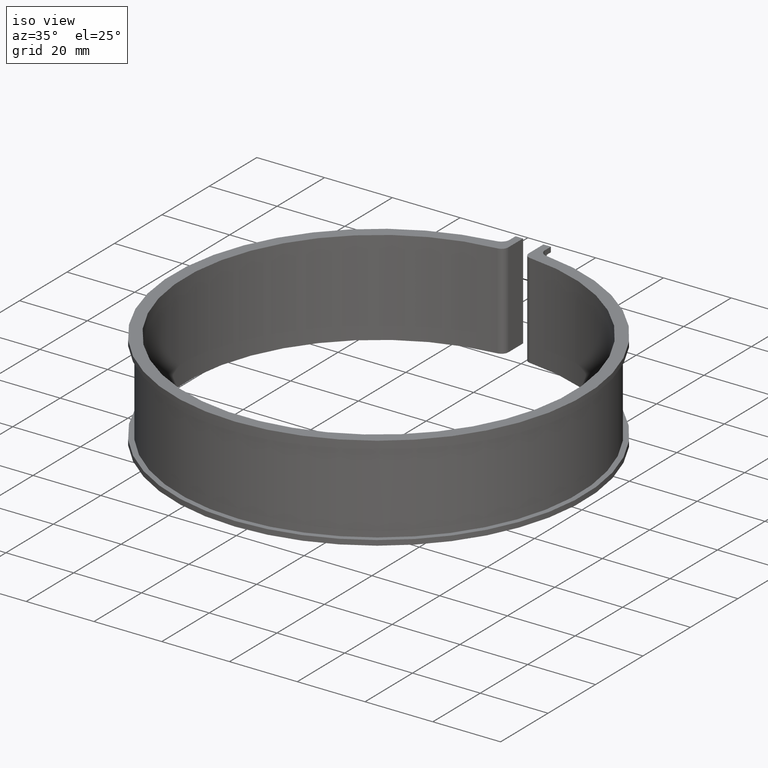
[diagram: clean part render]
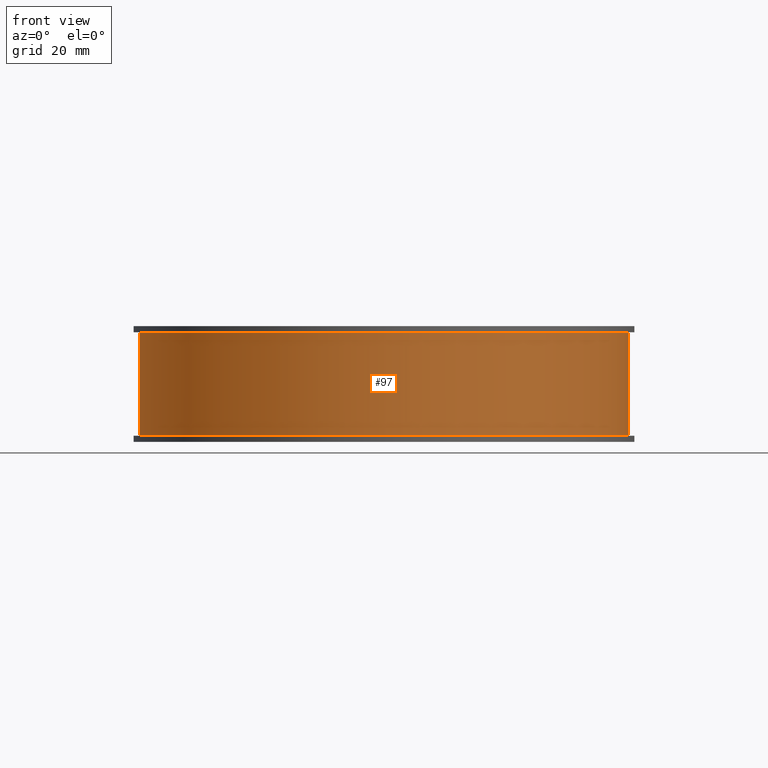
[diagram: tour spotlight — one face highlighted and labeled with its STEP entity id]
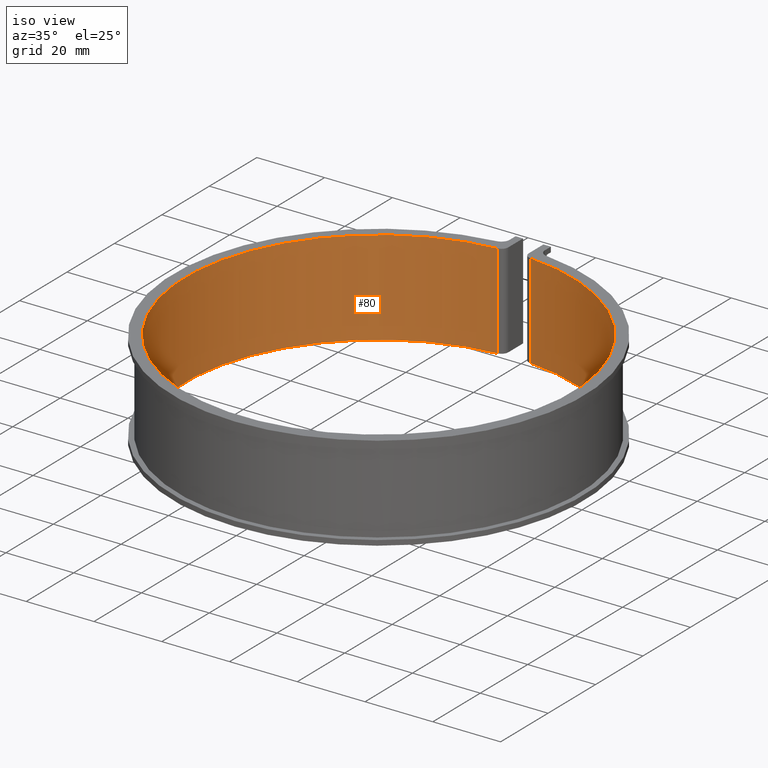
[diagram: tour spotlight — one face highlighted and labeled with its STEP entity id]
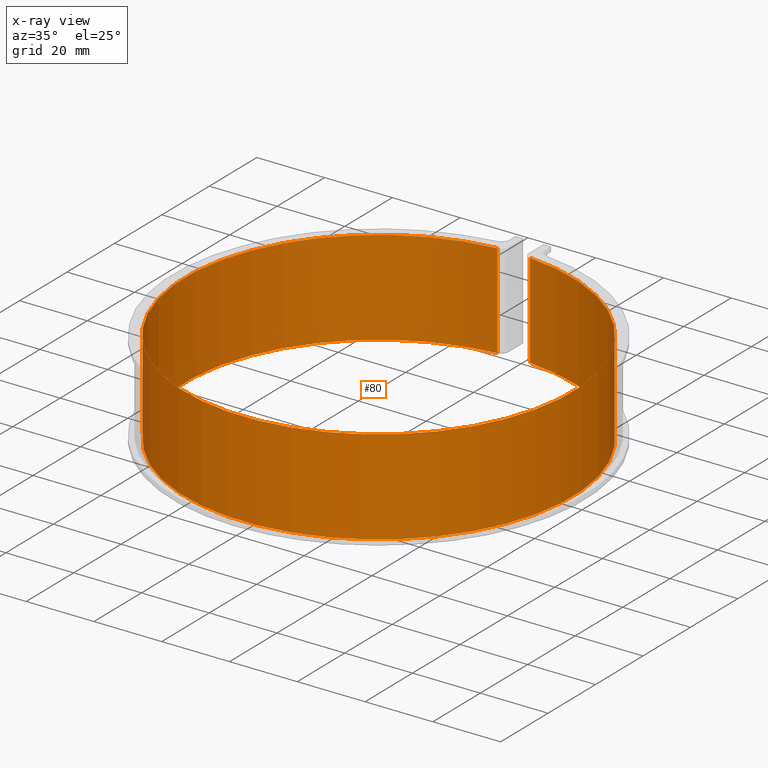
[diagram: x-ray of the same camera — body ghosted, this tour face saturated]
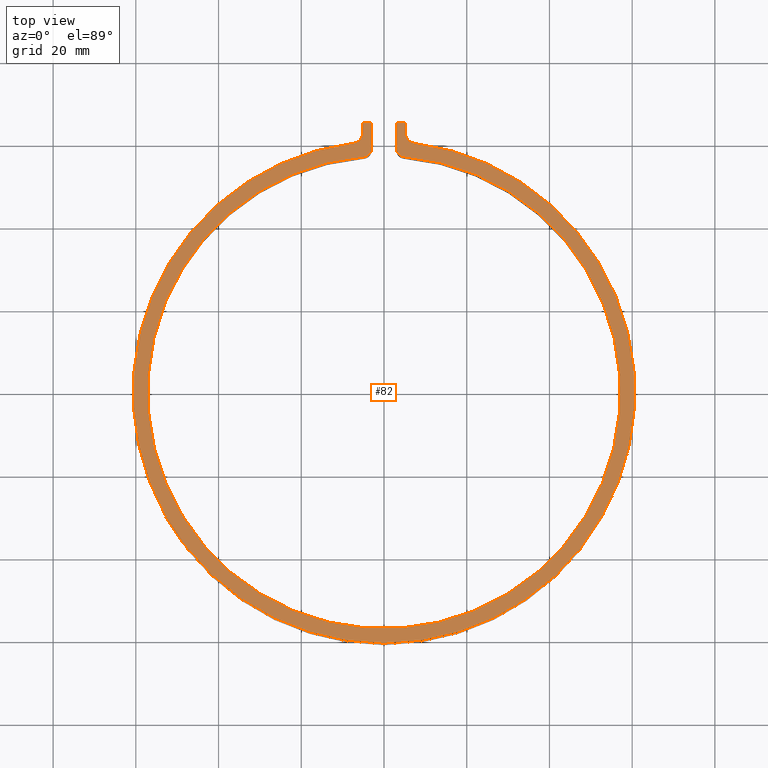
[diagram: tour spotlight — one face highlighted and labeled with its STEP entity id]
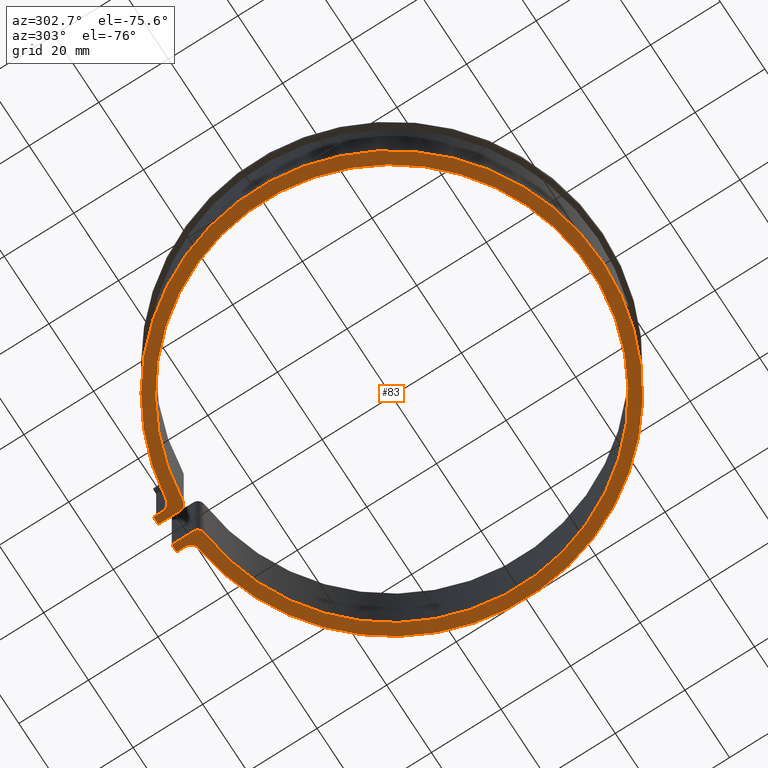
[diagram: tour spotlight — one face highlighted and labeled with its STEP entity id]
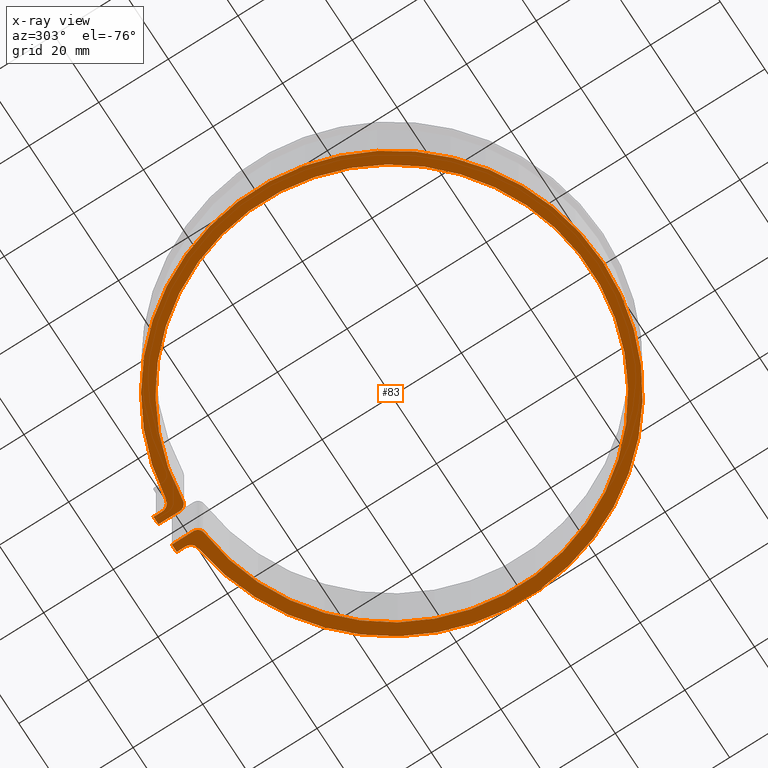
[diagram: x-ray of the same camera — body ghosted, this tour face saturated]
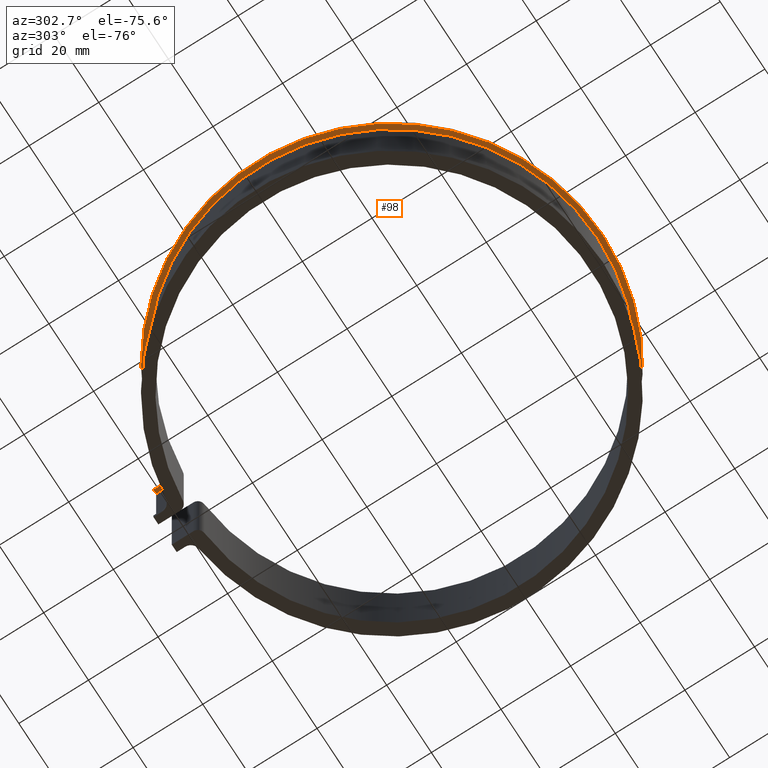
[diagram: tour spotlight — one face highlighted and labeled with its STEP entity id]
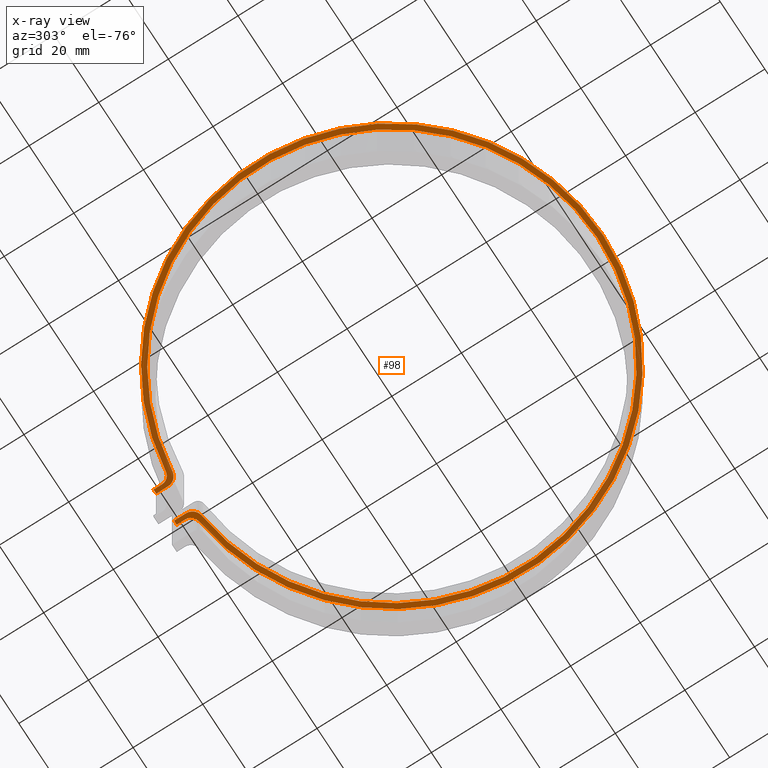
[diagram: x-ray of the same camera — body ghosted, this tour face saturated]
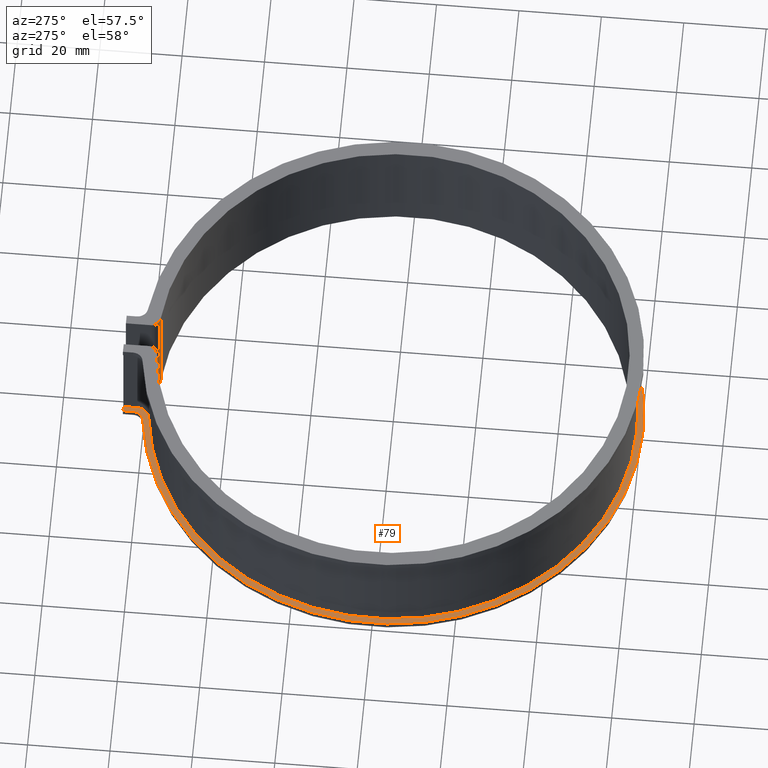
[diagram: tour spotlight — one face highlighted and labeled with its STEP entity id]
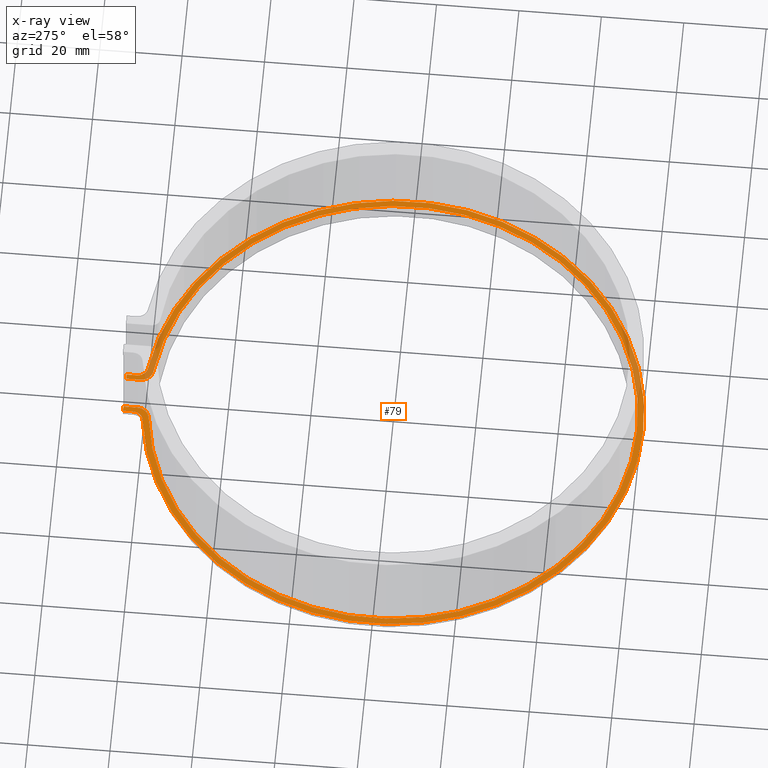
[diagram: x-ray of the same camera — body ghosted, this tour face saturated]
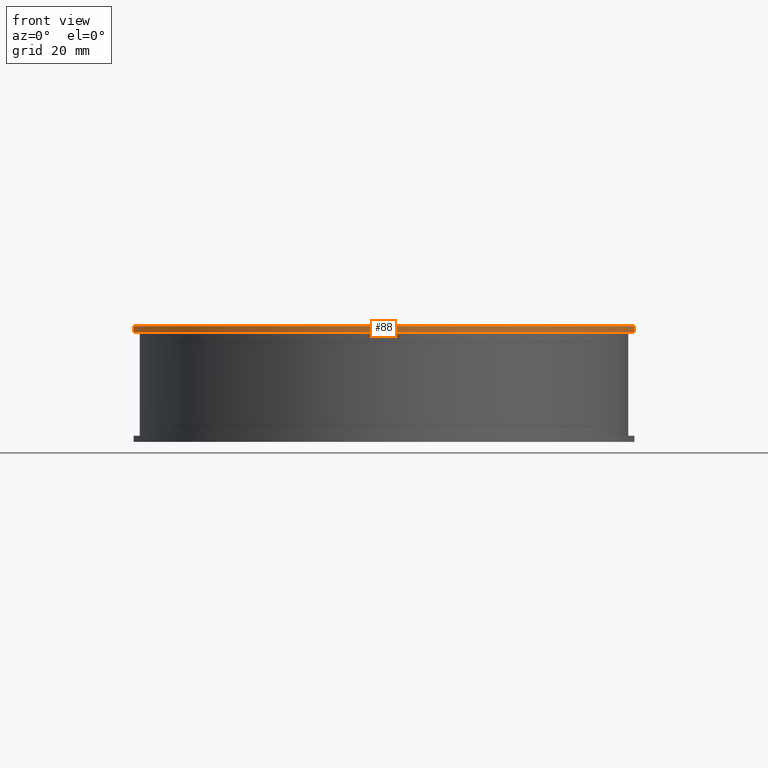
[diagram: tour spotlight — one face highlighted and labeled with its STEP entity id]
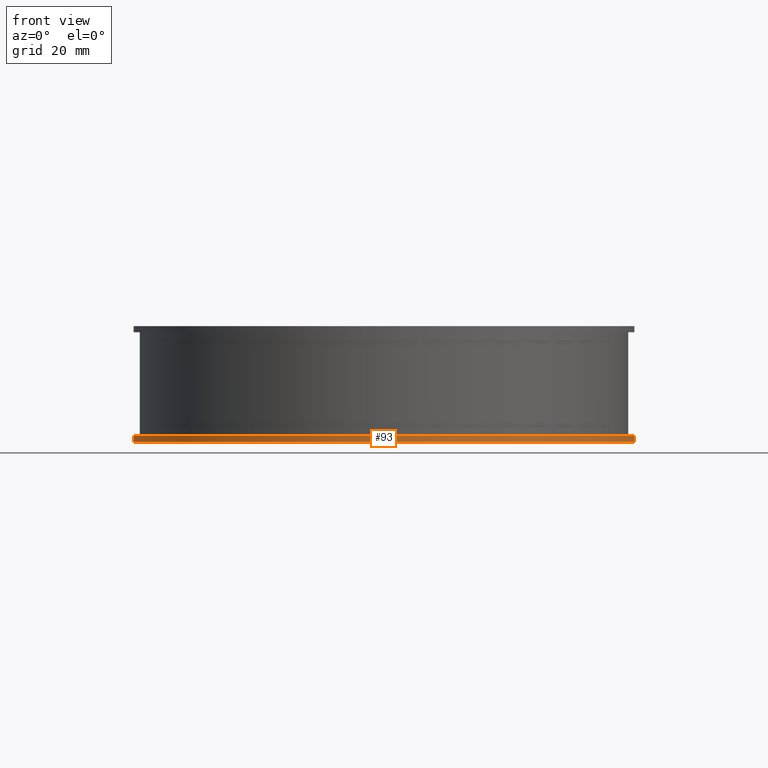
[diagram: tour spotlight — one face highlighted and labeled with its STEP entity id]
A machine part: a face-by-face anatomy tour. The part has 26 B-rep faces; the first image is the clean iso view, then the 8 largest visible faces are spotlighted one at a time (largest first), each with its STEP entity span.

Face 1 — front view, entity #97. In plain terms, the highlighted cylindrical surface (partial cylindrical patch) has radius 59.15 mm, axis along (0, 0, -1).
Definition (entity closure, byte-faithful):
#97 = ADVANCED_FACE( '', ( #146 ), #147, .T. );
#146 = FACE_OUTER_BOUND( '', #198, .T. );
#147 = CYLINDRICAL_SURFACE( '', #199, 59.1500000000000 );
#198 = EDGE_LOOP( '', ( #392, #393, #394, #395 ) );
#199 = AXIS2_PLACEMENT_3D( '', #396, #397, #398 );
#392 = ORIENTED_EDGE( '', *, *, #493, .F. );
#393 = ORIENTED_EDGE( '', *, *, #455, .T. );
#394 = ORIENTED_EDGE( '', *, *, #495, .T. );
#395 = ORIENTED_EDGE( '', *, *, #496, .F. );
#396 = CARTESIAN_POINT( '', ( 0.000000000000000, 3.46944695195361E-014, -14.0000000000000 ) );
#397 = DIRECTION( '', ( 0.000000000000000, 0.000000000000000, -1.00000000000000 ) );
#398 = DIRECTION( '', ( -0.0845308537616220, -0.996420862267712, 0.000000000000000 ) );
#455 = EDGE_CURVE( '', #537, #550, #552, .T. );
#493 = EDGE_CURVE( '', #537, #610, #611, .T. );
#495 = EDGE_CURVE( '', #550, #613, #614, .T. );
#496 = EDGE_CURVE( '', #610, #613, #615, .T. );
#537 = VERTEX_POINT( '', #674 );
#550 = VERTEX_POINT( '', #690 );
#552 = CIRCLE( '', #692, 59.1500000000000 );
#610 = VERTEX_POINT( '', #774 );
#611 = LINE( '', #775, #776 );
#613 = VERTEX_POINT( '', #778 );
#614 = LINE( '', #779, #780 );
#615 = CIRCLE( '', #781, 59.1500000000000 );
#674 = CARTESIAN_POINT( '', ( -6.66210780370072, 58.7736235024852, -12.5000000000000 ) );
#690 = CARTESIAN_POINT( '', ( 6.66210780370075, 58.7736235024851, -12.5000000000000 ) );
#692 = AXIS2_PLACEMENT_3D( '', #829, #830, #831 );
#774 = CARTESIAN_POINT( '', ( -6.66210780370077, 58.7736235024851, 12.5000000000000 ) );
#775 = CARTESIAN_POINT( '', ( -6.66210780370072, 58.7736235024852, -14.0000000000000 ) );
#776 = VECTOR( '', #895, 1000.00000000000 );
#778 = CARTESIAN_POINT( '', ( 6.66210780370074, 58.7736235024851, 12.5000000000000 ) );
#779 = CARTESIAN_POINT( '', ( 6.66210780370075, 58.7736235024851, -14.0000000000000 ) );
#780 = VECTOR( '', #899, 1000.00000000000 );
#781 = AXIS2_PLACEMENT_3D( '', #900, #901, #902 );
#829 = CARTESIAN_POINT( '', ( -1.73472347597681E-015, -6.93889390390723E-015, -12.5000000000000 ) );
#830 = DIRECTION( '', ( 0.000000000000000, 0.000000000000000, 1.00000000000000 ) );
#831 = DIRECTION( '', ( 1.00000000000000, 2.77555756156289E-017, 0.000000000000000 ) );
#895 = DIRECTION( '', ( 0.000000000000000, 0.000000000000000, 1.00000000000000 ) );
#899 = DIRECTION( '', ( 0.000000000000000, 0.000000000000000, 1.00000000000000 ) );
#900 = CARTESIAN_POINT( '', ( -1.73472347597681E-015, -6.93889390390723E-015, 12.5000000000000 ) );
#901 = DIRECTION( '', ( 0.000000000000000, 0.000000000000000, 1.00000000000000 ) );
#902 = DIRECTION( '', ( 1.00000000000000, 2.77555756156289E-017, 0.000000000000000 ) );

Face 2 — iso view, entity #80. An x-ray twin of the same camera follows (body ghosted, this face saturated) — the face is partly hidden behind the body. In plain terms, the highlighted cylindrical surface (partial cylindrical patch) has radius 57.15 mm, axis along (0, 0, -1).
Definition (entity closure, byte-faithful):
#80 = ADVANCED_FACE( '', ( #112 ), #113, .F. );
#112 = FACE_OUTER_BOUND( '', #164, .T. );
#113 = CYLINDRICAL_SURFACE( '', #165, 57.1500000000000 );
#164 = EDGE_LOOP( '', ( #253, #254, #255, #256 ) );
#165 = AXIS2_PLACEMENT_3D( '', #257, #258, #259 );
#253 = ORIENTED_EDGE( '', *, *, #456, .F. );
#254 = ORIENTED_EDGE( '', *, *, #435, .F. );
#255 = ORIENTED_EDGE( '', *, *, #457, .T. );
#256 = ORIENTED_EDGE( '', *, *, #458, .T. );
#257 = CARTESIAN_POINT( '', ( 3.46944695195361E-015, 3.46944695195361E-014, -14.0000000000000 ) );
#258 = DIRECTION( '', ( 0.000000000000000, 0.000000000000000, -1.00000000000000 ) );
#259 = DIRECTION( '', ( -0.0845308537616220, -0.996420862267712, 0.000000000000000 ) );
#435 = EDGE_CURVE( '', #513, #509, #515, .T. );
#456 = EDGE_CURVE( '', #509, #553, #554, .T. );
#457 = EDGE_CURVE( '', #513, #555, #556, .T. );
#458 = EDGE_CURVE( '', #555, #553, #557, .T. );
#509 = VERTEX_POINT( '', #633 );
#513 = VERTEX_POINT( '', #638 );
#515 = LINE( '', #640, #641 );
#553 = VERTEX_POINT( '', #693 );
#554 = CIRCLE( '', #694, 57.1500000000000 );
#555 = VERTEX_POINT( '', #695 );
#556 = CIRCLE( '', #696, 57.1500000000000 );
#557 = LINE( '', #697, #698 );
#633 = CARTESIAN_POINT( '', ( 4.83093829247670, 56.9454522785998, 14.0000000000000 ) );
#638 = CARTESIAN_POINT( '', ( 4.83093829247670, 56.9454522785998, -14.0000000000000 ) );
#640 = CARTESIAN_POINT( '', ( 4.83093829247670, 56.9454522785998, -14.0000000000000 ) );
#641 = VECTOR( '', #799, 1000.00000000000 );
#693 = CARTESIAN_POINT( '', ( -4.83093829247667, 56.9454522785998, 14.0000000000000 ) );
#694 = AXIS2_PLACEMENT_3D( '', #832, #833, #834 );
#695 = CARTESIAN_POINT( '', ( -4.83093829247667, 56.9454522785998, -14.0000000000000 ) );
#696 = AXIS2_PLACEMENT_3D( '', #835, #836, #837 );
#697 = CARTESIAN_POINT( '', ( -4.83093829247667, 56.9454522785998, -14.0000000000000 ) );
#698 = VECTOR( '', #838, 1000.00000000000 );
#799 = DIRECTION( '', ( 0.000000000000000, 0.000000000000000, 1.00000000000000 ) );
#832 = CARTESIAN_POINT( '', ( 3.46944695195361E-015, 3.46944695195361E-014, 14.0000000000000 ) );
#833 = DIRECTION( '', ( 0.000000000000000, 0.000000000000000, -1.00000000000000 ) );
#834 = DIRECTION( '', ( 1.00000000000000, -5.55111512312578E-017, 0.000000000000000 ) );
#835 = CARTESIAN_POINT( '', ( 3.46944695195361E-015, 3.46944695195361E-014, -14.0000000000000 ) );
#836 = DIRECTION( '', ( 0.000000000000000, 0.000000000000000, -1.00000000000000 ) );
#837 = DIRECTION( '', ( 1.00000000000000, -5.55111512312578E-017, 0.000000000000000 ) );
#838 = DIRECTION( '', ( 0.000000000000000, 0.000000000000000, 1.00000000000000 ) );

Face 3 — top view, entity #82. In plain terms, the highlighted planar face has unit normal (0, 0, 1).
Definition (entity closure, byte-faithful):
#82 = ADVANCED_FACE( '', ( #116 ), #117, .T. );
#116 = FACE_OUTER_BOUND( '', #168, .T. );
#117 = PLANE( '', #169 );
#168 = EDGE_LOOP( '', ( #267, #268, #269, #270, #271, #272, #273, #274, #275, #276, #277, #278 ) );
#169 = AXIS2_PLACEMENT_3D( '', #279, #280, #281 );
#267 = ORIENTED_EDGE( '', *, *, #462, .F. );
#268 = ORIENTED_EDGE( '', *, *, #436, .T. );
#269 = ORIENTED_EDGE( '', *, *, #463, .T. );
#270 = ORIENTED_EDGE( '', *, *, #432, .T. );
#271 = ORIENTED_EDGE( '', *, *, #456, .T. );
#272 = ORIENTED_EDGE( '', *, *, #459, .T. );
#273 = ORIENTED_EDGE( '', *, *, #464, .T. );
#274 = ORIENTED_EDGE( '', *, *, #465, .T. );
#275 = ORIENTED_EDGE( '', *, *, #466, .F. );
#276 = ORIENTED_EDGE( '', *, *, #467, .F. );
#277 = ORIENTED_EDGE( '', *, *, #468, .F. );
#278 = ORIENTED_EDGE( '', *, *, #469, .F. );
#279 = CARTESIAN_POINT( '', ( 5.00000000000000, 58.9382940031352, 14.0000000000000 ) );
#280 = DIRECTION( '', ( 0.000000000000000, 0.000000000000000, 1.00000000000000 ) );
#281 = DIRECTION( '', ( -0.0845308537616220, -0.996420862267712, 0.000000000000000 ) );
#432 = EDGE_CURVE( '', #508, #509, #510, .T. );
#436 = EDGE_CURVE( '', #516, #517, #518, .T. );
#456 = EDGE_CURVE( '', #509, #553, #554, .T. );
#459 = EDGE_CURVE( '', #553, #558, #559, .T. );
#462 = EDGE_CURVE( '', #516, #563, #564, .T. );
#463 = EDGE_CURVE( '', #517, #508, #565, .T. );
#464 = EDGE_CURVE( '', #558, #566, #567, .T. );
#465 = EDGE_CURVE( '', #566, #568, #569, .T. );
#466 = EDGE_CURVE( '', #570, #568, #571, .T. );
#467 = EDGE_CURVE( '', #572, #570, #573, .T. );
#468 = EDGE_CURVE( '', #574, #572, #575, .T. );
#469 = EDGE_CURVE( '', #563, #574, #576, .T. );
#508 = VERTEX_POINT( '', #632 );
#509 = VERTEX_POINT( '', #633 );
#510 = CIRCLE( '', #634, 2.00000000000000 );
#516 = VERTEX_POINT( '', #642 );
#517 = VERTEX_POINT( '', #643 );
#518 = LINE( '', #644, #645 );
#553 = VERTEX_POINT( '', #693 );
#554 = CIRCLE( '', #694, 57.1500000000000 );
#558 = VERTEX_POINT( '', #699 );
#559 = CIRCLE( '', #700, 2.00000000000000 );
#563 = VERTEX_POINT( '', #705 );
#564 = LINE( '', #706, #707 );
#565 = LINE( '', #708, #709 );
#566 = VERTEX_POINT( '', #710 );
#567 = LINE( '', #711, #712 );
#568 = VERTEX_POINT( '', #713 );
#569 = LINE( '', #714, #715 );
#570 = VERTEX_POINT( '', #716 );
#571 = LINE( '', #717, #718 );
#572 = VERTEX_POINT( '', #719 );
#573 = CIRCLE( '', #720, 2.50000000000000 );
#574 = VERTEX_POINT( '', #721 );
#575 = CIRCLE( '', #722, 60.6500000000000 );
#576 = CIRCLE( '', #723, 2.50000000000000 );
#632 = CARTESIAN_POINT( '', ( 3.00000000000000, 58.9382940031352, 14.0000000000000 ) );
#633 = CARTESIAN_POINT( '', ( 4.83093829247670, 56.9454522785998, 14.0000000000000 ) );
#634 = AXIS2_PLACEMENT_3D( '', #792, #793, #794 );
#642 = CARTESIAN_POINT( '', ( 5.19999999999996, 65.1500000000000, 14.0000000000000 ) );
#643 = CARTESIAN_POINT( '', ( 3.00000000000001, 65.1500000000000, 14.0000000000000 ) );
#644 = CARTESIAN_POINT( '', ( 4.00000000000000, 65.1500000000000, 14.0000000000000 ) );
#645 = VECTOR( '', #800, 1000.00000000000 );
#693 = CARTESIAN_POINT( '', ( -4.83093829247667, 56.9454522785998, 14.0000000000000 ) );
#694 = AXIS2_PLACEMENT_3D( '', #832, #833, #834 );
#699 = CARTESIAN_POINT( '', ( -2.99999999999995, 58.9382940031352, 14.0000000000000 ) );
#700 = AXIS2_PLACEMENT_3D( '', #839, #840, #841 );
#705 = CARTESIAN_POINT( '', ( 5.19999999999995, 62.6788042323719, 14.0000000000000 ) );
#706 = CARTESIAN_POINT( '', ( 5.19999999999995, 65.1500000000000, 14.0000000000000 ) );
#707 = VECTOR( '', #846, 1000.00000000000 );
#708 = CARTESIAN_POINT( '', ( 3.00000000000000, 65.1500000000000, 14.0000000000000 ) );
#709 = VECTOR( '', #847, 1000.00000000000 );
#710 = CARTESIAN_POINT( '', ( -2.99999999999995, 65.1500000000000, 14.0000000000000 ) );
#711 = CARTESIAN_POINT( '', ( -2.99999999999995, 58.9382940031352, 14.0000000000000 ) );
#712 = VECTOR( '', #848, 1000.00000000000 );
#713 = CARTESIAN_POINT( '', ( -5.19999999999999, 65.1500000000000, 14.0000000000000 ) );
#714 = CARTESIAN_POINT( '', ( -2.99999999999996, 65.1500000000000, 14.0000000000000 ) );
#715 = VECTOR( '', #849, 1000.00000000000 );
#716 = CARTESIAN_POINT( '', ( -5.20000000000000, 62.6788042323718, 14.0000000000000 ) );
#717 = CARTESIAN_POINT( '', ( -5.19999999999999, 62.6788042323719, 14.0000000000000 ) );
#718 = VECTOR( '', #850, 1000.00000000000 );
#719 = CARTESIAN_POINT( '', ( -7.39517022961199, 60.1974580632360, 14.0000000000000 ) );
#720 = AXIS2_PLACEMENT_3D( '', #851, #852, #853 );
#721 = CARTESIAN_POINT( '', ( 7.39517022961200, 60.1974580632360, 14.0000000000000 ) );
#722 = AXIS2_PLACEMENT_3D( '', #854, #855, #856 );
#723 = AXIS2_PLACEMENT_3D( '', #857, #858, #859 );
#792 = CARTESIAN_POINT( '', ( 5.00000000000000, 58.9382940031352, 14.0000000000000 ) );
#793 = DIRECTION( '', ( 0.000000000000000, 0.000000000000000, 1.00000000000000 ) );
#794 = DIRECTION( '', ( -1.00000000000000, -1.17961196366423E-015, 0.000000000000000 ) );
#800 = DIRECTION( '', ( -1.00000000000000, 4.16333634234434E-017, 0.000000000000000 ) );
#832 = CARTESIAN_POINT( '', ( 3.46944695195361E-015, 3.46944695195361E-014, 14.0000000000000 ) );
#833 = DIRECTION( '', ( 0.000000000000000, 0.000000000000000, -1.00000000000000 ) );
#834 = DIRECTION( '', ( 1.00000000000000, -5.55111512312578E-017, 0.000000000000000 ) );
#839 = CARTESIAN_POINT( '', ( -4.99999999999995, 58.9382940031352, 14.0000000000000 ) );
#840 = DIRECTION( '', ( 0.000000000000000, 0.000000000000000, 1.00000000000000 ) );
#841 = DIRECTION( '', ( 1.00000000000000, -2.38697950294409E-015, 0.000000000000000 ) );
#846 = DIRECTION( '', ( -6.93889390390723E-017, -1.00000000000000, 0.000000000000000 ) );
#847 = DIRECTION( '', ( 1.38777878078145E-017, -1.00000000000000, 0.000000000000000 ) );
#848 = DIRECTION( '', ( -1.38777878078145E-017, 1.00000000000000, 0.000000000000000 ) );
#849 = DIRECTION( '', ( -1.00000000000000, 4.16333634234434E-017, 0.000000000000000 ) );
#850 = DIRECTION( '', ( 6.93889390390723E-017, 1.00000000000000, 0.000000000000000 ) );
#851 = CARTESIAN_POINT( '', ( -7.69999999999999, 62.6788042323718, 14.0000000000000 ) );
#852 = DIRECTION( '', ( 0.000000000000000, 0.000000000000000, 1.00000000000000 ) );
#853 = DIRECTION( '', ( 1.00000000000000, 3.76088049591772E-015, 0.000000000000000 ) );
#854 = CARTESIAN_POINT( '', ( -1.73472347597681E-015, -6.93889390390723E-015, 14.0000000000000 ) );
#855 = DIRECTION( '', ( 0.000000000000000, 0.000000000000000, -1.00000000000000 ) );
#856 = DIRECTION( '', ( 1.00000000000000, -5.55111512312578E-017, 0.000000000000000 ) );
#857 = CARTESIAN_POINT( '', ( 7.69999999999995, 62.6788042323719, 14.0000000000000 ) );
#858 = DIRECTION( '', ( 0.000000000000000, 0.000000000000000, 1.00000000000000 ) );
#859 = DIRECTION( '', ( -1.00000000000000, 1.66533453693773E-015, 0.000000000000000 ) );

Face 4 — auxiliary view, entity #83. An x-ray twin of the same camera follows (body ghosted, this face saturated) — the face is partly hidden behind the body. In plain terms, the highlighted planar face has unit normal (0, 0, 1).
Definition (entity closure, byte-faithful):
#83 = ADVANCED_FACE( '', ( #118 ), #119, .F. );
#118 = FACE_OUTER_BOUND( '', #170, .T. );
#119 = PLANE( '', #171 );
#170 = EDGE_LOOP( '', ( #282, #283, #284, #285, #286, #287, #288, #289, #290, #291, #292, #293 ) );
#171 = AXIS2_PLACEMENT_3D( '', #294, #295, #296 );
#282 = ORIENTED_EDGE( '', *, *, #442, .F. );
#283 = ORIENTED_EDGE( '', *, *, #446, .T. );
#284 = ORIENTED_EDGE( '', *, *, #470, .T. );
#285 = ORIENTED_EDGE( '', *, *, #471, .T. );
#286 = ORIENTED_EDGE( '', *, *, #472, .T. );
#287 = ORIENTED_EDGE( '', *, *, #473, .T. );
#288 = ORIENTED_EDGE( '', *, *, #474, .F. );
#289 = ORIENTED_EDGE( '', *, *, #475, .F. );
#290 = ORIENTED_EDGE( '', *, *, #460, .F. );
#291 = ORIENTED_EDGE( '', *, *, #457, .F. );
#292 = ORIENTED_EDGE( '', *, *, #434, .F. );
#293 = ORIENTED_EDGE( '', *, *, #476, .F. );
#294 = CARTESIAN_POINT( '', ( 5.00000000000000, 58.9382940031352, -14.0000000000000 ) );
#295 = DIRECTION( '', ( 0.000000000000000, 0.000000000000000, 1.00000000000000 ) );
#296 = DIRECTION( '', ( -0.0845308537616220, -0.996420862267712, 0.000000000000000 ) );
#434 = EDGE_CURVE( '', #511, #513, #514, .T. );
#442 = EDGE_CURVE( '', #527, #529, #530, .T. );
#446 = EDGE_CURVE( '', #527, #534, #536, .T. );
#457 = EDGE_CURVE( '', #513, #555, #556, .T. );
#460 = EDGE_CURVE( '', #555, #560, #561, .T. );
#470 = EDGE_CURVE( '', #534, #577, #578, .T. );
#471 = EDGE_CURVE( '', #577, #579, #580, .T. );
#472 = EDGE_CURVE( '', #579, #581, #582, .T. );
#473 = EDGE_CURVE( '', #581, #583, #584, .T. );
#474 = EDGE_CURVE( '', #585, #583, #586, .T. );
#475 = EDGE_CURVE( '', #560, #585, #587, .T. );
#476 = EDGE_CURVE( '', #529, #511, #588, .T. );
#511 = VERTEX_POINT( '', #635 );
#513 = VERTEX_POINT( '', #638 );
#514 = CIRCLE( '', #639, 2.00000000000000 );
#527 = VERTEX_POINT( '', #658 );
#529 = VERTEX_POINT( '', #661 );
#530 = LINE( '', #662, #663 );
#534 = VERTEX_POINT( '', #669 );
#536 = LINE( '', #672, #673 );
#555 = VERTEX_POINT( '', #695 );
#556 = CIRCLE( '', #696, 57.1500000000000 );
#560 = VERTEX_POINT( '', #701 );
#561 = CIRCLE( '', #702, 2.00000000000000 );
#577 = VERTEX_POINT( '', #724 );
#578 = CIRCLE( '', #725, 2.50000000000000 );
#579 = VERTEX_POINT( '', #726 );
#580 = CIRCLE( '', #727, 60.6500000000000 );
#581 = VERTEX_POINT( '', #728 );
#582 = CIRCLE( '', #729, 2.50000000000000 );
#583 = VERTEX_POINT( '', #730 );
#584 = LINE( '', #731, #732 );
#585 = VERTEX_POINT( '', #733 );
#586 = LINE( '', #734, #735 );
#587 = LINE( '', #736, #737 );
#588 = LINE( '', #738, #739 );
#635 = CARTESIAN_POINT( '', ( 3.00000000000000, 58.9382940031352, -14.0000000000000 ) );
#638 = CARTESIAN_POINT( '', ( 4.83093829247670, 56.9454522785998, -14.0000000000000 ) );
#639 = AXIS2_PLACEMENT_3D( '', #796, #797, #798 );
#658 = CARTESIAN_POINT( '', ( 5.19999999999996, 65.1500000000000, -14.0000000000000 ) );
#661 = CARTESIAN_POINT( '', ( 3.00000000000001, 65.1500000000000, -14.0000000000000 ) );
#662 = CARTESIAN_POINT( '', ( 4.00000000000000, 65.1500000000000, -14.0000000000000 ) );
#663 = VECTOR( '', #806, 1000.00000000000 );
#669 = CARTESIAN_POINT( '', ( 5.19999999999995, 62.6788042323719, -14.0000000000000 ) );
#672 = CARTESIAN_POINT( '', ( 5.19999999999995, 65.1500000000000, -14.0000000000000 ) );
#673 = VECTOR( '', #810, 1000.00000000000 );
#695 = CARTESIAN_POINT( '', ( -4.83093829247667, 56.9454522785998, -14.0000000000000 ) );
#696 = AXIS2_PLACEMENT_3D( '', #835, #836, #837 );
#701 = CARTESIAN_POINT( '', ( -2.99999999999995, 58.9382940031352, -14.0000000000000 ) );
#702 = AXIS2_PLACEMENT_3D( '', #842, #843, #844 );
#724 = CARTESIAN_POINT( '', ( 7.39517022961200, 60.1974580632360, -14.0000000000000 ) );
#725 = AXIS2_PLACEMENT_3D( '', #860, #861, #862 );
#726 = CARTESIAN_POINT( '', ( -7.39517022961199, 60.1974580632360, -14.0000000000000 ) );
#727 = AXIS2_PLACEMENT_3D( '', #863, #864, #865 );
#728 = CARTESIAN_POINT( '', ( -5.20000000000000, 62.6788042323718, -14.0000000000000 ) );
#729 = AXIS2_PLACEMENT_3D( '', #866, #867, #868 );
#730 = CARTESIAN_POINT( '', ( -5.19999999999999, 65.1500000000000, -14.0000000000000 ) );
#731 = CARTESIAN_POINT( '', ( -5.19999999999999, 62.6788042323719, -14.0000000000000 ) );
#732 = VECTOR( '', #869, 1000.00000000000 );
#733 = CARTESIAN_POINT( '', ( -2.99999999999995, 65.1500000000000, -14.0000000000000 ) );
#734 = CARTESIAN_POINT( '', ( -2.99999999999996, 65.1500000000000, -14.0000000000000 ) );
#735 = VECTOR( '', #870, 1000.00000000000 );
#736 = CARTESIAN_POINT( '', ( -2.99999999999995, 58.9382940031352, -14.0000000000000 ) );
#737 = VECTOR( '', #871, 1000.00000000000 );
#738 = CARTESIAN_POINT( '', ( 3.00000000000000, 65.1500000000000, -14.0000000000000 ) );
#739 = VECTOR( '', #872, 1000.00000000000 );
#796 = CARTESIAN_POINT( '', ( 5.00000000000000, 58.9382940031352, -14.0000000000000 ) );
#797 = DIRECTION( '', ( 0.000000000000000, 0.000000000000000, 1.00000000000000 ) );
#798 = DIRECTION( '', ( -1.00000000000000, -1.17961196366423E-015, 0.000000000000000 ) );
#806 = DIRECTION( '', ( -1.00000000000000, 4.16333634234434E-017, 0.000000000000000 ) );
#810 = DIRECTION( '', ( -6.93889390390723E-017, -1.00000000000000, 0.000000000000000 ) );
#835 = CARTESIAN_POINT( '', ( 3.46944695195361E-015, 3.46944695195361E-014, -14.0000000000000 ) );
#836 = DIRECTION( '', ( 0.000000000000000, 0.000000000000000, -1.00000000000000 ) );
#837 = DIRECTION( '', ( 1.00000000000000, -5.55111512312578E-017, 0.000000000000000 ) );
#842 = CARTESIAN_POINT( '', ( -4.99999999999995, 58.9382940031352, -14.0000000000000 ) );
#843 = DIRECTION( '', ( 0.000000000000000, 0.000000000000000, 1.00000000000000 ) );
#844 = DIRECTION( '', ( 1.00000000000000, -2.38697950294409E-015, 0.000000000000000 ) );
#860 = CARTESIAN_POINT( '', ( 7.69999999999995, 62.6788042323719, -14.0000000000000 ) );
#861 = DIRECTION( '', ( 0.000000000000000, 0.000000000000000, 1.00000000000000 ) );
#862 = DIRECTION( '', ( -1.00000000000000, 1.66533453693773E-015, 0.000000000000000 ) );
#863 = CARTESIAN_POINT( '', ( -1.73472347597681E-015, -6.93889390390723E-015, -14.0000000000000 ) );
#864 = DIRECTION( '', ( 0.000000000000000, 0.000000000000000, -1.00000000000000 ) );
#865 = DIRECTION( '', ( 1.00000000000000, -5.55111512312578E-017, 0.000000000000000 ) );
#866 = CARTESIAN_POINT( '', ( -7.69999999999999, 62.6788042323718, -14.0000000000000 ) );
#867 = DIRECTION( '', ( 0.000000000000000, 0.000000000000000, 1.00000000000000 ) );
#868 = DIRECTION( '', ( 1.00000000000000, 3.76088049591772E-015, 0.000000000000000 ) );
#869 = DIRECTION( '', ( 6.93889390390723E-017, 1.00000000000000, 0.000000000000000 ) );
#870 = DIRECTION( '', ( -1.00000000000000, 4.16333634234434E-017, 0.000000000000000 ) );
#871 = DIRECTION( '', ( -1.38777878078145E-017, 1.00000000000000, 0.000000000000000 ) );
#872 = DIRECTION( '', ( 1.38777878078145E-017, -1.00000000000000, 0.000000000000000 ) );

Face 5 — auxiliary view, entity #98. An x-ray twin of the same camera follows (body ghosted, this face saturated) — the face is partly hidden behind the body. In plain terms, the highlighted planar face has unit normal (0, 0, -1).
Definition (entity closure, byte-faithful):
#98 = ADVANCED_FACE( '', ( #148 ), #149, .T. );
#148 = FACE_OUTER_BOUND( '', #200, .T. );
#149 = PLANE( '', #201 );
#200 = EDGE_LOOP( '', ( #399, #400, #401, #402, #403, #404, #405, #406, #407, #408, #409, #410 ) );
#201 = AXIS2_PLACEMENT_3D( '', #411, #412, #413 );
#399 = ORIENTED_EDGE( '', *, *, #494, .T. );
#400 = ORIENTED_EDGE( '', *, *, #496, .T. );
#401 = ORIENTED_EDGE( '', *, *, #497, .T. );
#402 = ORIENTED_EDGE( '', *, *, #498, .T. );
#403 = ORIENTED_EDGE( '', *, *, #438, .T. );
#404 = ORIENTED_EDGE( '', *, *, #489, .T. );
#405 = ORIENTED_EDGE( '', *, *, #487, .T. );
#406 = ORIENTED_EDGE( '', *, *, #485, .T. );
#407 = ORIENTED_EDGE( '', *, *, #483, .T. );
#408 = ORIENTED_EDGE( '', *, *, #481, .T. );
#409 = ORIENTED_EDGE( '', *, *, #479, .T. );
#410 = ORIENTED_EDGE( '', *, *, #431, .T. );
#411 = CARTESIAN_POINT( '', ( -6.99999999999999, 61.7545342464827, 12.5000000000000 ) );
#412 = DIRECTION( '', ( 0.000000000000000, 0.000000000000000, -1.00000000000000 ) );
#413 = DIRECTION( '', ( 0.112630732099759, -0.993636914665851, 0.000000000000000 ) );
#431 = EDGE_CURVE( '', #501, #505, #507, .T. );
#438 = EDGE_CURVE( '', #521, #519, #522, .T. );
#479 = EDGE_CURVE( '', #591, #501, #592, .T. );
#481 = EDGE_CURVE( '', #594, #591, #595, .T. );
#483 = EDGE_CURVE( '', #597, #594, #598, .T. );
#485 = EDGE_CURVE( '', #600, #597, #601, .T. );
#487 = EDGE_CURVE( '', #603, #600, #604, .T. );
#489 = EDGE_CURVE( '', #519, #603, #606, .T. );
#494 = EDGE_CURVE( '', #505, #610, #612, .T. );
#496 = EDGE_CURVE( '', #610, #613, #615, .T. );
#497 = EDGE_CURVE( '', #613, #616, #617, .T. );
#498 = EDGE_CURVE( '', #616, #521, #618, .T. );
#501 = VERTEX_POINT( '', #621 );
#505 = VERTEX_POINT( '', #627 );
#507 = LINE( '', #630, #631 );
#519 = VERTEX_POINT( '', #646 );
#521 = VERTEX_POINT( '', #649 );
#522 = LINE( '', #650, #651 );
#591 = VERTEX_POINT( '', #744 );
#592 = LINE( '', #745, #746 );
#594 = VERTEX_POINT( '', #749 );
#595 = LINE( '', #750, #751 );
#597 = VERTEX_POINT( '', #754 );
#598 = CIRCLE( '', #755, 2.50000000000000 );
#600 = VERTEX_POINT( '', #758 );
#601 = CIRCLE( '', #759, 60.6500000000000 );
#603 = VERTEX_POINT( '', #762 );
#604 = CIRCLE( '', #763, 2.50000000000000 );
#606 = LINE( '', #766, #767 );
#610 = VERTEX_POINT( '', #774 );
#612 = CIRCLE( '', #777, 3.00000000000000 );
#613 = VERTEX_POINT( '', #778 );
#615 = CIRCLE( '', #781, 59.1500000000000 );
#616 = VERTEX_POINT( '', #782 );
#617 = CIRCLE( '', #783, 3.00000000000000 );
#618 = LINE( '', #784, #785 );
#621 = CARTESIAN_POINT( '', ( -4.00000000000000, 65.1500000000000, 12.5000000000000 ) );
#627 = CARTESIAN_POINT( '', ( -4.00000000000000, 61.7545342464827, 12.5000000000000 ) );
#630 = CARTESIAN_POINT( '', ( -4.00000000000000, 65.1500000000000, 12.5000000000000 ) );
#631 = VECTOR( '', #791, 1000.00000000000 );
#646 = CARTESIAN_POINT( '', ( 5.19999999999996, 65.1500000000000, 12.5000000000000 ) );
#649 = CARTESIAN_POINT( '', ( 4.00000000000000, 65.1500000000000, 12.5000000000000 ) );
#650 = CARTESIAN_POINT( '', ( 4.00000000000002, 65.1500000000000, 12.5000000000000 ) );
#651 = VECTOR( '', #802, 1000.00000000000 );
#744 = CARTESIAN_POINT( '', ( -5.19999999999999, 65.1500000000000, 12.5000000000000 ) );
#745 = CARTESIAN_POINT( '', ( -5.20000000000000, 65.1500000000000, 12.5000000000000 ) );
#746 = VECTOR( '', #875, 1000.00000000000 );
#749 = CARTESIAN_POINT( '', ( -5.20000000000000, 62.6788042323718, 12.5000000000000 ) );
#750 = CARTESIAN_POINT( '', ( -5.19999999999999, 62.6788042323719, 12.5000000000000 ) );
#751 = VECTOR( '', #877, 1000.00000000000 );
#754 = CARTESIAN_POINT( '', ( -7.39517022961199, 60.1974580632360, 12.5000000000000 ) );
#755 = AXIS2_PLACEMENT_3D( '', #879, #880, #881 );
#758 = CARTESIAN_POINT( '', ( 7.39517022961200, 60.1974580632360, 12.5000000000000 ) );
#759 = AXIS2_PLACEMENT_3D( '', #883, #884, #885 );
#762 = CARTESIAN_POINT( '', ( 5.19999999999995, 62.6788042323719, 12.5000000000000 ) );
#763 = AXIS2_PLACEMENT_3D( '', #887, #888, #889 );
#766 = CARTESIAN_POINT( '', ( 5.19999999999995, 65.1500000000000, 12.5000000000000 ) );
#767 = VECTOR( '', #891, 1000.00000000000 );
#774 = CARTESIAN_POINT( '', ( -6.66210780370077, 58.7736235024851, 12.5000000000000 ) );
#777 = AXIS2_PLACEMENT_3D( '', #896, #897, #898 );
#778 = CARTESIAN_POINT( '', ( 6.66210780370074, 58.7736235024851, 12.5000000000000 ) );
#781 = AXIS2_PLACEMENT_3D( '', #900, #901, #902 );
#782 = CARTESIAN_POINT( '', ( 4.00000000000000, 61.7545342464827, 12.5000000000000 ) );
#783 = AXIS2_PLACEMENT_3D( '', #903, #904, #905 );
#784 = CARTESIAN_POINT( '', ( 4.00000000000000, 61.7545342464827, 12.5000000000000 ) );
#785 = VECTOR( '', #906, 1000.00000000000 );
#791 = DIRECTION( '', ( -8.32667268468867E-017, -1.00000000000000, 0.000000000000000 ) );
#802 = DIRECTION( '', ( 1.00000000000000, 0.000000000000000, 0.000000000000000 ) );
#875 = DIRECTION( '', ( 1.00000000000000, 0.000000000000000, 0.000000000000000 ) );
#877 = DIRECTION( '', ( 6.93889390390723E-017, 1.00000000000000, 0.000000000000000 ) );
#879 = CARTESIAN_POINT( '', ( -7.69999999999999, 62.6788042323718, 12.5000000000000 ) );
#880 = DIRECTION( '', ( 0.000000000000000, 0.000000000000000, 1.00000000000000 ) );
#881 = DIRECTION( '', ( 1.00000000000000, 3.76088049591772E-015, 0.000000000000000 ) );
#883 = CARTESIAN_POINT( '', ( -1.73472347597681E-015, -6.93889390390723E-015, 12.5000000000000 ) );
#884 = DIRECTION( '', ( 0.000000000000000, 0.000000000000000, -1.00000000000000 ) );
#885 = DIRECTION( '', ( 1.00000000000000, -5.55111512312578E-017, 0.000000000000000 ) );
#887 = CARTESIAN_POINT( '', ( 7.69999999999995, 62.6788042323719, 12.5000000000000 ) );
#888 = DIRECTION( '', ( 0.000000000000000, 0.000000000000000, 1.00000000000000 ) );
#889 = DIRECTION( '', ( -1.00000000000000, 1.66533453693773E-015, 0.000000000000000 ) );
#891 = DIRECTION( '', ( -6.93889390390723E-017, -1.00000000000000, 0.000000000000000 ) );
#896 = CARTESIAN_POINT( '', ( -6.99999999999999, 61.7545342464827, 12.5000000000000 ) );
#897 = DIRECTION( '', ( 0.000000000000000, 0.000000000000000, -1.00000000000000 ) );
#898 = DIRECTION( '', ( 1.00000000000000, 1.01307850997046E-015, 0.000000000000000 ) );
#900 = CARTESIAN_POINT( '', ( -1.73472347597681E-015, -6.93889390390723E-015, 12.5000000000000 ) );
#901 = DIRECTION( '', ( 0.000000000000000, 0.000000000000000, 1.00000000000000 ) );
#902 = DIRECTION( '', ( 1.00000000000000, 2.77555756156289E-017, 0.000000000000000 ) );
#903 = CARTESIAN_POINT( '', ( 7.00000000000000, 61.7545342464827, 12.5000000000000 ) );
#904 = DIRECTION( '', ( 0.000000000000000, 0.000000000000000, -1.00000000000000 ) );
#905 = DIRECTION( '', ( -1.00000000000000, -9.71445146547012E-016, 0.000000000000000 ) );
#906 = DIRECTION( '', ( -6.93889390390723E-017, 1.00000000000000, 0.000000000000000 ) );

Face 6 — auxiliary view, entity #79. An x-ray twin of the same camera follows (body ghosted, this face saturated) — the face is partly hidden behind the body. In plain terms, the highlighted planar face has unit normal (0, 0, -1).
Definition (entity closure, byte-faithful):
#79 = ADVANCED_FACE( '', ( #110 ), #111, .F. );
#110 = FACE_OUTER_BOUND( '', #162, .T. );
#111 = PLANE( '', #163 );
#162 = EDGE_LOOP( '', ( #238, #239, #240, #241, #242, #243, #244, #245, #246, #247, #248, #249 ) );
#163 = AXIS2_PLACEMENT_3D( '', #250, #251, #252 );
#238 = ORIENTED_EDGE( '', *, *, #447, .F. );
#239 = ORIENTED_EDGE( '', *, *, #429, .F. );
#240 = ORIENTED_EDGE( '', *, *, #448, .F. );
#241 = ORIENTED_EDGE( '', *, *, #449, .F. );
#242 = ORIENTED_EDGE( '', *, *, #450, .F. );
#243 = ORIENTED_EDGE( '', *, *, #451, .F. );
#244 = ORIENTED_EDGE( '', *, *, #452, .F. );
#245 = ORIENTED_EDGE( '', *, *, #444, .F. );
#246 = ORIENTED_EDGE( '', *, *, #440, .F. );
#247 = ORIENTED_EDGE( '', *, *, #453, .F. );
#248 = ORIENTED_EDGE( '', *, *, #454, .F. );
#249 = ORIENTED_EDGE( '', *, *, #455, .F. );
#250 = CARTESIAN_POINT( '', ( -6.99999999999999, 61.7545342464827, -12.5000000000000 ) );
#251 = DIRECTION( '', ( 0.000000000000000, 0.000000000000000, -1.00000000000000 ) );
#252 = DIRECTION( '', ( 0.112630732099759, -0.993636914665851, 0.000000000000000 ) );
#429 = EDGE_CURVE( '', #500, #503, #504, .T. );
#440 = EDGE_CURVE( '', #523, #525, #526, .T. );
#444 = EDGE_CURVE( '', #525, #532, #533, .T. );
#447 = EDGE_CURVE( '', #503, #537, #538, .T. );
#448 = EDGE_CURVE( '', #539, #500, #540, .T. );
#449 = EDGE_CURVE( '', #541, #539, #542, .T. );
#450 = EDGE_CURVE( '', #543, #541, #544, .T. );
#451 = EDGE_CURVE( '', #545, #543, #546, .T. );
#452 = EDGE_CURVE( '', #532, #545, #547, .T. );
#453 = EDGE_CURVE( '', #548, #523, #549, .T. );
#454 = EDGE_CURVE( '', #550, #548, #551, .T. );
#455 = EDGE_CURVE( '', #537, #550, #552, .T. );
#500 = VERTEX_POINT( '', #620 );
#503 = VERTEX_POINT( '', #624 );
#504 = LINE( '', #625, #626 );
#523 = VERTEX_POINT( '', #652 );
#525 = VERTEX_POINT( '', #655 );
#526 = LINE( '', #656, #657 );
#532 = VERTEX_POINT( '', #666 );
#533 = LINE( '', #667, #668 );
#537 = VERTEX_POINT( '', #674 );
#538 = CIRCLE( '', #675, 3.00000000000000 );
#539 = VERTEX_POINT( '', #676 );
#540 = LINE( '', #677, #678 );
#541 = VERTEX_POINT( '', #679 );
#542 = LINE( '', #680, #681 );
#543 = VERTEX_POINT( '', #682 );
#544 = CIRCLE( '', #683, 2.50000000000000 );
#545 = VERTEX_POINT( '', #684 );
#546 = CIRCLE( '', #685, 60.6500000000000 );
#547 = CIRCLE( '', #686, 2.50000000000000 );
#548 = VERTEX_POINT( '', #687 );
#549 = LINE( '', #688, #689 );
#550 = VERTEX_POINT( '', #690 );
#551 = CIRCLE( '', #691, 3.00000000000000 );
#552 = CIRCLE( '', #692, 59.1500000000000 );
#620 = CARTESIAN_POINT( '', ( -4.00000000000002, 65.1500000000000, -12.5000000000000 ) );
#624 = CARTESIAN_POINT( '', ( -4.00000000000000, 61.7545342464827, -12.5000000000000 ) );
#625 = CARTESIAN_POINT( '', ( -4.00000000000000, 65.1500000000000, -12.5000000000000 ) );
#626 = VECTOR( '', #789, 1000.00000000000 );
#652 = CARTESIAN_POINT( '', ( 4.00000000000000, 65.1500000000000, -12.5000000000000 ) );
#655 = CARTESIAN_POINT( '', ( 5.19999999999996, 65.1500000000000, -12.5000000000000 ) );
#656 = CARTESIAN_POINT( '', ( 4.00000000000002, 65.1500000000000, -12.5000000000000 ) );
#657 = VECTOR( '', #804, 1000.00000000000 );
#666 = CARTESIAN_POINT( '', ( 5.19999999999995, 62.6788042323719, -12.5000000000000 ) );
#667 = CARTESIAN_POINT( '', ( 5.19999999999995, 65.1500000000000, -12.5000000000000 ) );
#668 = VECTOR( '', #808, 1000.00000000000 );
#674 = CARTESIAN_POINT( '', ( -6.66210780370072, 58.7736235024852, -12.5000000000000 ) );
#675 = AXIS2_PLACEMENT_3D( '', #811, #812, #813 );
#676 = CARTESIAN_POINT( '', ( -5.19999999999999, 65.1500000000000, -12.5000000000000 ) );
#677 = CARTESIAN_POINT( '', ( -5.20000000000000, 65.1500000000000, -12.5000000000000 ) );
#678 = VECTOR( '', #814, 1000.00000000000 );
#679 = CARTESIAN_POINT( '', ( -5.20000000000000, 62.6788042323718, -12.5000000000000 ) );
#680 = CARTESIAN_POINT( '', ( -5.19999999999999, 62.6788042323719, -12.5000000000000 ) );
#681 = VECTOR( '', #815, 1000.00000000000 );
#682 = CARTESIAN_POINT( '', ( -7.39517022961199, 60.1974580632360, -12.5000000000000 ) );
#683 = AXIS2_PLACEMENT_3D( '', #816, #817, #818 );
#684 = CARTESIAN_POINT( '', ( 7.39517022961200, 60.1974580632360, -12.5000000000000 ) );
#685 = AXIS2_PLACEMENT_3D( '', #819, #820, #821 );
#686 = AXIS2_PLACEMENT_3D( '', #822, #823, #824 );
#687 = CARTESIAN_POINT( '', ( 4.00000000000000, 61.7545342464827, -12.5000000000000 ) );
#688 = CARTESIAN_POINT( '', ( 4.00000000000000, 61.7545342464827, -12.5000000000000 ) );
#689 = VECTOR( '', #825, 1000.00000000000 );
#690 = CARTESIAN_POINT( '', ( 6.66210780370075, 58.7736235024851, -12.5000000000000 ) );
#691 = AXIS2_PLACEMENT_3D( '', #826, #827, #828 );
#692 = AXIS2_PLACEMENT_3D( '', #829, #830, #831 );
#789 = DIRECTION( '', ( -8.32667268468867E-017, -1.00000000000000, 0.000000000000000 ) );
#804 = DIRECTION( '', ( 1.00000000000000, 0.000000000000000, 0.000000000000000 ) );
#808 = DIRECTION( '', ( -6.93889390390723E-017, -1.00000000000000, 0.000000000000000 ) );
#811 = CARTESIAN_POINT( '', ( -6.99999999999999, 61.7545342464827, -12.5000000000000 ) );
#812 = DIRECTION( '', ( 0.000000000000000, 0.000000000000000, -1.00000000000000 ) );
#813 = DIRECTION( '', ( 1.00000000000000, 1.01307850997046E-015, 0.000000000000000 ) );
#814 = DIRECTION( '', ( 1.00000000000000, 0.000000000000000, 0.000000000000000 ) );
#815 = DIRECTION( '', ( 6.93889390390723E-017, 1.00000000000000, 0.000000000000000 ) );
#816 = CARTESIAN_POINT( '', ( -7.69999999999999, 62.6788042323718, -12.5000000000000 ) );
#817 = DIRECTION( '', ( 0.000000000000000, 0.000000000000000, 1.00000000000000 ) );
#818 = DIRECTION( '', ( 1.00000000000000, 3.76088049591772E-015, 0.000000000000000 ) );
#819 = CARTESIAN_POINT( '', ( -1.73472347597681E-015, -6.93889390390723E-015, -12.5000000000000 ) );
#820 = DIRECTION( '', ( 0.000000000000000, 0.000000000000000, -1.00000000000000 ) );
#821 = DIRECTION( '', ( 1.00000000000000, -5.55111512312578E-017, 0.000000000000000 ) );
#822 = CARTESIAN_POINT( '', ( 7.69999999999995, 62.6788042323719, -12.5000000000000 ) );
#823 = DIRECTION( '', ( 0.000000000000000, 0.000000000000000, 1.00000000000000 ) );
#824 = DIRECTION( '', ( -1.00000000000000, 1.66533453693773E-015, 0.000000000000000 ) );
#825 = DIRECTION( '', ( -6.93889390390723E-017, 1.00000000000000, 0.000000000000000 ) );
#826 = CARTESIAN_POINT( '', ( 7.00000000000000, 61.7545342464827, -12.5000000000000 ) );
#827 = DIRECTION( '', ( 0.000000000000000, 0.000000000000000, -1.00000000000000 ) );
#828 = DIRECTION( '', ( -1.00000000000000, -9.71445146547012E-016, 0.000000000000000 ) );
#829 = CARTESIAN_POINT( '', ( -1.73472347597681E-015, -6.93889390390723E-015, -12.5000000000000 ) );
#830 = DIRECTION( '', ( 0.000000000000000, 0.000000000000000, 1.00000000000000 ) );
#831 = DIRECTION( '', ( 1.00000000000000, 2.77555756156289E-017, 0.000000000000000 ) );

Face 7 — front view, entity #88. In plain terms, the highlighted cylindrical surface (partial cylindrical patch) has radius 60.65 mm, axis along (0, 0, 1).
Definition (entity closure, byte-faithful):
#88 = ADVANCED_FACE( '', ( #128 ), #129, .T. );
#128 = FACE_OUTER_BOUND( '', #180, .T. );
#129 = CYLINDRICAL_SURFACE( '', #181, 60.6500000000000 );
#180 = EDGE_LOOP( '', ( #329, #330, #331, #332 ) );
#181 = AXIS2_PLACEMENT_3D( '', #333, #334, #335 );
#329 = ORIENTED_EDGE( '', *, *, #485, .F. );
#330 = ORIENTED_EDGE( '', *, *, #486, .F. );
#331 = ORIENTED_EDGE( '', *, *, #468, .T. );
#332 = ORIENTED_EDGE( '', *, *, #484, .T. );
#333 = CARTESIAN_POINT( '', ( -1.73472347597681E-015, -6.93889390390723E-015, 14.0000000000000 ) );
#334 = DIRECTION( '', ( 0.000000000000000, 0.000000000000000, 1.00000000000000 ) );
#335 = DIRECTION( '', ( 0.112630732099759, -0.993636914665851, 0.000000000000000 ) );
#468 = EDGE_CURVE( '', #574, #572, #575, .T. );
#484 = EDGE_CURVE( '', #572, #597, #599, .T. );
#485 = EDGE_CURVE( '', #600, #597, #601, .T. );
#486 = EDGE_CURVE( '', #574, #600, #602, .T. );
#572 = VERTEX_POINT( '', #719 );
#574 = VERTEX_POINT( '', #721 );
#575 = CIRCLE( '', #722, 60.6500000000000 );
#597 = VERTEX_POINT( '', #754 );
#599 = LINE( '', #756, #757 );
#600 = VERTEX_POINT( '', #758 );
#601 = CIRCLE( '', #759, 60.6500000000000 );
#602 = LINE( '', #760, #761 );
#719 = CARTESIAN_POINT( '', ( -7.39517022961199, 60.1974580632360, 14.0000000000000 ) );
#721 = CARTESIAN_POINT( '', ( 7.39517022961200, 60.1974580632360, 14.0000000000000 ) );
#722 = AXIS2_PLACEMENT_3D( '', #854, #855, #856 );
#754 = CARTESIAN_POINT( '', ( -7.39517022961199, 60.1974580632360, 12.5000000000000 ) );
#756 = CARTESIAN_POINT( '', ( -7.39517022961199, 60.1974580632360, 14.0000000000000 ) );
#757 = VECTOR( '', #882, 1000.00000000000 );
#758 = CARTESIAN_POINT( '', ( 7.39517022961200, 60.1974580632360, 12.5000000000000 ) );
#759 = AXIS2_PLACEMENT_3D( '', #883, #884, #885 );
#760 = CARTESIAN_POINT( '', ( 7.39517022961200, 60.1974580632360, 14.0000000000000 ) );
#761 = VECTOR( '', #886, 1000.00000000000 );
#854 = CARTESIAN_POINT( '', ( -1.73472347597681E-015, -6.93889390390723E-015, 14.0000000000000 ) );
#855 = DIRECTION( '', ( 0.000000000000000, 0.000000000000000, -1.00000000000000 ) );
#856 = DIRECTION( '', ( 1.00000000000000, -5.55111512312578E-017, 0.000000000000000 ) );
#882 = DIRECTION( '', ( 0.000000000000000, 0.000000000000000, -1.00000000000000 ) );
#883 = CARTESIAN_POINT( '', ( -1.73472347597681E-015, -6.93889390390723E-015, 12.5000000000000 ) );
#884 = DIRECTION( '', ( 0.000000000000000, 0.000000000000000, -1.00000000000000 ) );
#885 = DIRECTION( '', ( 1.00000000000000, -5.55111512312578E-017, 0.000000000000000 ) );
#886 = DIRECTION( '', ( 0.000000000000000, 0.000000000000000, -1.00000000000000 ) );

Face 8 — front view, entity #93. In plain terms, the highlighted cylindrical surface (partial cylindrical patch) has radius 60.65 mm, axis along (0, 0, -1).
Definition (entity closure, byte-faithful):
#93 = ADVANCED_FACE( '', ( #138 ), #139, .T. );
#138 = FACE_OUTER_BOUND( '', #190, .T. );
#139 = CYLINDRICAL_SURFACE( '', #191, 60.6500000000000 );
#190 = EDGE_LOOP( '', ( #364, #365, #366, #367 ) );
#191 = AXIS2_PLACEMENT_3D( '', #368, #369, #370 );
#364 = ORIENTED_EDGE( '', *, *, #451, .T. );
#365 = ORIENTED_EDGE( '', *, *, #491, .F. );
#366 = ORIENTED_EDGE( '', *, *, #471, .F. );
#367 = ORIENTED_EDGE( '', *, *, #490, .T. );
#368 = CARTESIAN_POINT( '', ( -1.73472347597681E-015, -6.93889390390723E-015, -14.0000000000000 ) );
#369 = DIRECTION( '', ( 0.000000000000000, 0.000000000000000, -1.00000000000000 ) );
#370 = DIRECTION( '', ( -0.112630732099759, 0.993636914665851, 0.000000000000000 ) );
#451 = EDGE_CURVE( '', #545, #543, #546, .T. );
#471 = EDGE_CURVE( '', #577, #579, #580, .T. );
#490 = EDGE_CURVE( '', #577, #545, #607, .T. );
#491 = EDGE_CURVE( '', #579, #543, #608, .T. );
#543 = VERTEX_POINT( '', #682 );
#545 = VERTEX_POINT( '', #684 );
#546 = CIRCLE( '', #685, 60.6500000000000 );
#577 = VERTEX_POINT( '', #724 );
#579 = VERTEX_POINT( '', #726 );
#580 = CIRCLE( '', #727, 60.6500000000000 );
#607 = LINE( '', #768, #769 );
#608 = LINE( '', #770, #771 );
#682 = CARTESIAN_POINT( '', ( -7.39517022961199, 60.1974580632360, -12.5000000000000 ) );
#684 = CARTESIAN_POINT( '', ( 7.39517022961200, 60.1974580632360, -12.5000000000000 ) );
#685 = AXIS2_PLACEMENT_3D( '', #819, #820, #821 );
#724 = CARTESIAN_POINT( '', ( 7.39517022961200, 60.1974580632360, -14.0000000000000 ) );
#726 = CARTESIAN_POINT( '', ( -7.39517022961199, 60.1974580632360, -14.0000000000000 ) );
#727 = AXIS2_PLACEMENT_3D( '', #863, #864, #865 );
#768 = CARTESIAN_POINT( '', ( 7.39517022961200, 60.1974580632360, -14.0000000000000 ) );
#769 = VECTOR( '', #892, 1000.00000000000 );
#770 = CARTESIAN_POINT( '', ( -7.39517022961199, 60.1974580632360, -14.0000000000000 ) );
#771 = VECTOR( '', #893, 1000.00000000000 );
#819 = CARTESIAN_POINT( '', ( -1.73472347597681E-015, -6.93889390390723E-015, -12.5000000000000 ) );
#820 = DIRECTION( '', ( 0.000000000000000, 0.000000000000000, -1.00000000000000 ) );
#821 = DIRECTION( '', ( 1.00000000000000, -5.55111512312578E-017, 0.000000000000000 ) );
#863 = CARTESIAN_POINT( '', ( -1.73472347597681E-015, -6.93889390390723E-015, -14.0000000000000 ) );
#864 = DIRECTION( '', ( 0.000000000000000, 0.000000000000000, -1.00000000000000 ) );
#865 = DIRECTION( '', ( 1.00000000000000, -5.55111512312578E-017, 0.000000000000000 ) );
#892 = DIRECTION( '', ( 0.000000000000000, 0.000000000000000, 1.00000000000000 ) );
#893 = DIRECTION( '', ( 0.000000000000000, 0.000000000000000, 1.00000000000000 ) );